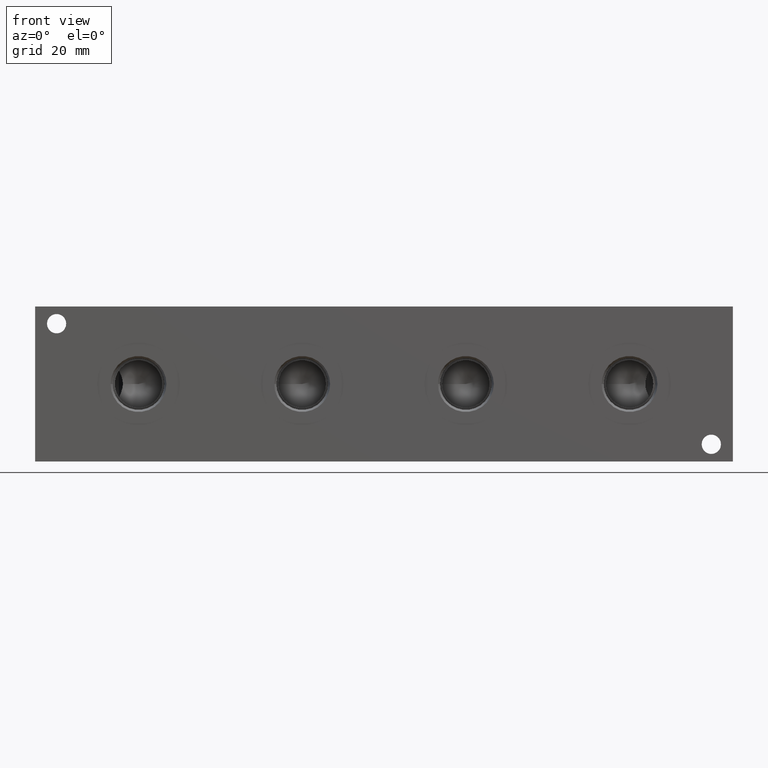
[diagram: clean part render]
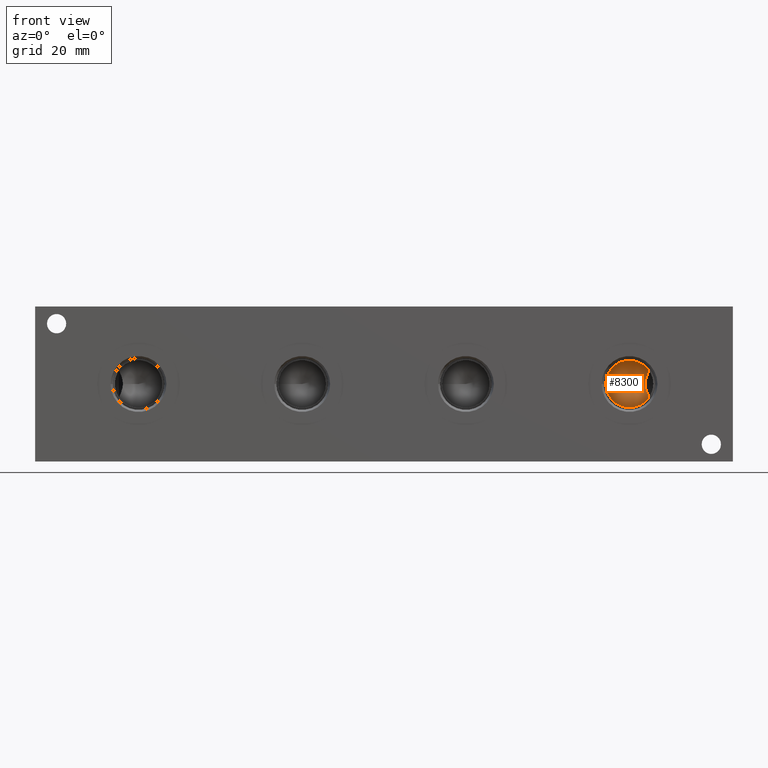
[diagram: same view with one face highlighted and labeled with its STEP entity id]
A machine part, front view. The second image highlights one B-rep face of the part: STEP entity #8300.
In plain terms, the highlighted conical surface has half-angle 66 deg.
Its self-contained STEP definition (entity closure, byte-faithful):
#39=CONICAL_SURFACE('',#8753,4.37515,1.15191730631626);
#124=CIRCLE('',#8592,8.7503);
#125=CIRCLE('',#8593,8.7503);
#964=FACE_OUTER_BOUND('',#1437,.T.);
#1437=EDGE_LOOP('',(#7230,#7231,#7232,#7233,#7234,#7235));
#2200=LINE('',#14316,#2933);
#2933=VECTOR('',#10338,4.37515);
#3203=B_SPLINE_CURVE_WITH_KNOTS('',3,(#13873,#13874,#13875,#13876,#13877,
#13878,#13879,#13880),.UNSPECIFIED.,.F.,.F.,(4,2,2,4),(2.73138546833772,
2.90209706010882,3.07280865187993,3.32790954385426),.UNSPECIFIED.);
#3204=B_SPLINE_CURVE_WITH_KNOTS('',3,(#13884,#13885,#13886,#13887,#13888,
#13889,#13890,#13891),.UNSPECIFIED.,.F.,.F.,(4,2,2,4),(2.13486139282117,
2.3899622847955,2.56067387656661,2.73138546833772),.UNSPECIFIED.);
#3813=VERTEX_POINT('',#13867);
#3814=VERTEX_POINT('',#13872);
#3816=VERTEX_POINT('',#13883);
#3820=VERTEX_POINT('',#13923);
#3932=VERTEX_POINT('',#14315);
#4890=EDGE_CURVE('',#3814,#3813,#3203,.T.);
#4892=EDGE_CURVE('',#3816,#3814,#3204,.T.);
#4899=EDGE_CURVE('',#3813,#3820,#124,.T.);
#4900=EDGE_CURVE('',#3820,#3816,#125,.T.);
#5062=EDGE_CURVE('',#3820,#3932,#2200,.T.);
#7230=ORIENTED_EDGE('',*,*,#4892,.T.);
#7231=ORIENTED_EDGE('',*,*,#4890,.T.);
#7232=ORIENTED_EDGE('',*,*,#4899,.T.);
#7233=ORIENTED_EDGE('',*,*,#5062,.T.);
#7234=ORIENTED_EDGE('',*,*,#5062,.F.);
#7235=ORIENTED_EDGE('',*,*,#4900,.T.);
#8300=ADVANCED_FACE('',(#964),#39,.F.);
#8592=AXIS2_PLACEMENT_3D('',#13925,#9969,#9970);
#8593=AXIS2_PLACEMENT_3D('',#13926,#9971,#9972);
#8753=AXIS2_PLACEMENT_3D('',#14314,#10336,#10337);
#9969=DIRECTION('center_axis',(0.,-1.,0.));
#9970=DIRECTION('ref_axis',(1.,0.,0.));
#9971=DIRECTION('center_axis',(0.,-1.,0.));
#9972=DIRECTION('ref_axis',(1.,0.,0.));
#10336=DIRECTION('center_axis',(0.,-1.,0.));
#10337=DIRECTION('ref_axis',(1.,0.,0.));
#10338=DIRECTION('',(0.913545457642601,0.4067366430758,1.11877052057761E-16));
#13867=CARTESIAN_POINT('',(226.276048011912,18.27831,33.5461827184423));
#13872=CARTESIAN_POINT('',(224.856271750225,19.6002065442912,28.575));
#13873=CARTESIAN_POINT('Ctrl Pts',(224.856271750225,19.6002065442912,28.575));
#13874=CARTESIAN_POINT('Ctrl Pts',(224.856271750225,19.6002065442912,29.144038639237));
#13875=CARTESIAN_POINT('Ctrl Pts',(224.926298313636,19.5319987044315,29.6612915120631));
#13876=CARTESIAN_POINT('Ctrl Pts',(225.137891946177,19.3292020261184,30.6420510992735));
#13877=CARTESIAN_POINT('Ctrl Pts',(225.279505189543,19.1947400297726,31.1055740748931));
#13878=CARTESIAN_POINT('Ctrl Pts',(225.682113496713,18.8184897635342,32.2376062403381));
#13879=CARTESIAN_POINT('Ctrl Pts',(225.966752969931,18.5571919697843,32.8916589766325));
#13880=CARTESIAN_POINT('Ctrl Pts',(226.276048011912,18.27831,33.5461827184422));
#13883=CARTESIAN_POINT('',(226.276048011912,18.27831,23.6038172815577));
#13884=CARTESIAN_POINT('Ctrl Pts',(226.276048011912,18.27831,23.6038172815577));
#13885=CARTESIAN_POINT('Ctrl Pts',(225.966752969931,18.5571919697843,24.2583410233675));
#13886=CARTESIAN_POINT('Ctrl Pts',(225.682113496713,18.8184897635342,24.9123937596619));
#13887=CARTESIAN_POINT('Ctrl Pts',(225.279505189543,19.1947400297726,26.0444259251069));
#13888=CARTESIAN_POINT('Ctrl Pts',(225.137891946177,19.3292020261184,26.5079489007265));
#13889=CARTESIAN_POINT('Ctrl Pts',(224.926298313636,19.5319987044315,27.4887084879369));
#13890=CARTESIAN_POINT('Ctrl Pts',(224.856271750225,19.6002065442912,28.005961360763));
#13891=CARTESIAN_POINT('Ctrl Pts',(224.856271750225,19.6002065442912,28.575));
#13923=CARTESIAN_POINT('',(210.3247,18.27831,28.575));
#13925=CARTESIAN_POINT('Origin',(219.075,18.27831,28.575));
#13926=CARTESIAN_POINT('Origin',(219.075,18.27831,28.575));
#14314=CARTESIAN_POINT('Origin',(219.075,20.2262522825276,28.575));
#14315=CARTESIAN_POINT('',(219.075,22.1741945650553,28.575));
#14316=CARTESIAN_POINT('',(214.69985,20.2262522825276,28.575));